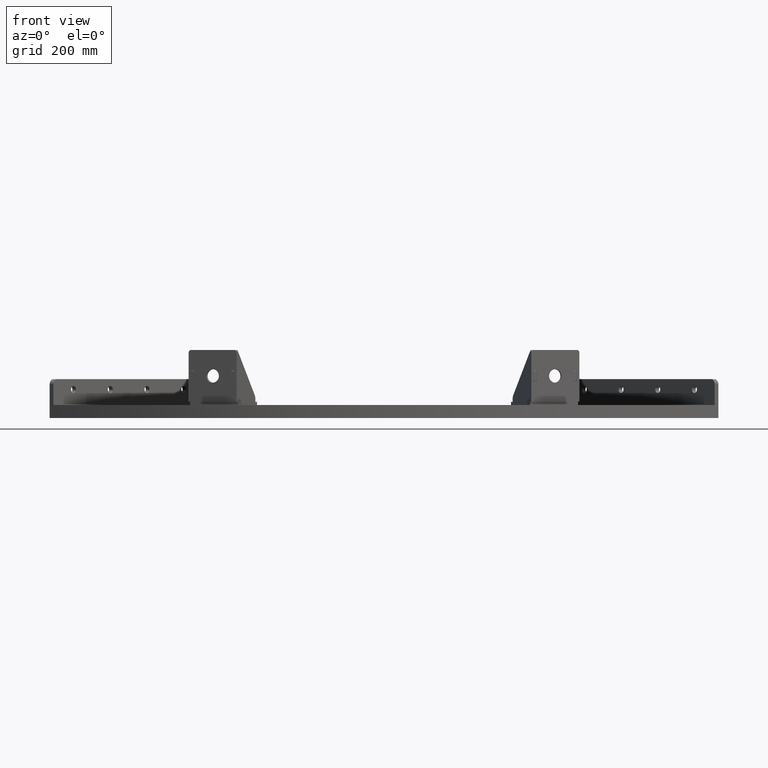
[diagram: clean part render]
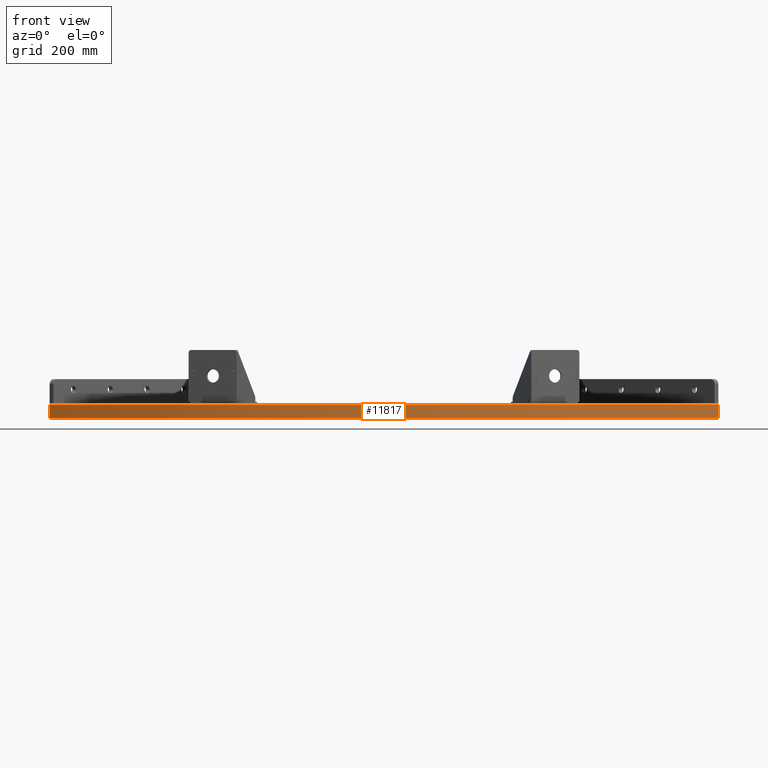
[diagram: same view with one face highlighted and labeled with its STEP entity id]
A machine part, front view. The second image highlights one B-rep face of the part: STEP entity #11817.
In plain terms, the highlighted cylindrical surface (partial cylindrical patch) has radius 910 mm, axis along (-0, -0, -1).
Its self-contained STEP definition (entity closure, byte-faithful):
#558 = CIRCLE ( 'NONE', #7912, 910.0000000000000000 ) ;
#790 = DIRECTION ( 'NONE',  ( 1.000000000000000000, -6.192194466414940491E-16, -3.812579068080895035E-18 ) ) ;
#1123 = ORIENTED_EDGE ( 'NONE', *, *, #10431, .T. ) ;
#1263 = ORIENTED_EDGE ( 'NONE', *, *, #2951, .F. ) ;
#1347 = VERTEX_POINT ( 'NONE', #11058 ) ;
#1471 = CARTESIAN_POINT ( 'NONE',  ( -643.4671708797592373, -643.4671708797567362, -24.99999999999987566 ) ) ;
#1525 = CARTESIAN_POINT ( 'NONE',  ( 0.000000000000000000, 0.000000000000000000, 0.000000000000000000 ) ) ;
#2165 = CARTESIAN_POINT ( 'NONE',  ( 643.4671708797599194, -643.4671708797573046, -24.99999999999988631 ) ) ;
#2423 = CARTESIAN_POINT ( 'NONE',  ( 643.4671708797599194, -643.4671708797573046, 1.144917494144692682E-13 ) ) ;
#2498 = CYLINDRICAL_SURFACE ( 'NONE', #6917, 910.0000000000000000 ) ;
#2951 = EDGE_CURVE ( 'NONE', #10601, #11516, #7067, .T. ) ;
#3209 = EDGE_CURVE ( 'NONE', #8951, #10601, #11053, .T. ) ;
#4597 = CARTESIAN_POINT ( 'NONE',  ( 5.463652379908002509E-17, 4.878909776184770742E-15, -25.00000000000000000 ) ) ;
#4973 = LINE ( 'NONE', #2165, #7714 ) ;
#5288 = FACE_OUTER_BOUND ( 'NONE', #8157, .T. ) ;
#5843 = DIRECTION ( 'NONE',  ( -2.185460951963199771E-18, -1.951563910473907981E-16, 1.000000000000000000 ) ) ;
#6074 = ORIENTED_EDGE ( 'NONE', *, *, #10623, .T. ) ;
#6183 = CARTESIAN_POINT ( 'NONE',  ( -643.4671708797592373, -643.4671708797567362, 1.249000902703301108E-13 ) ) ;
#6343 = DIRECTION ( 'NONE',  ( -2.185460951963199771E-18, -1.951563910473907981E-16, 1.000000000000000000 ) ) ;
#6917 = AXIS2_PLACEMENT_3D ( 'NONE', #11140, #6343, #10944 ) ;
#7067 = CIRCLE ( 'NONE', #10846, 910.0000000000000000 ) ;
#7430 = CARTESIAN_POINT ( 'NONE',  ( -643.4671708797592373, -643.4671708797567362, -24.99999999999987566 ) ) ;
#7436 = DIRECTION ( 'NONE',  ( -2.185460951963199771E-18, -1.951563910473907981E-16, 1.000000000000000000 ) ) ;
#7714 = VECTOR ( 'NONE', #5843, 1000.000000000000000 ) ;
#7912 = AXIS2_PLACEMENT_3D ( 'NONE', #4597, #7436, #790 ) ;
#8043 = VECTOR ( 'NONE', #10120, 1000.000000000000000 ) ;
#8157 = EDGE_LOOP ( 'NONE', ( #1263, #11352, #6074, #1123 ) ) ;
#8172 = DIRECTION ( 'NONE',  ( -2.185460951963199771E-18, -1.951563910473907981E-16, 1.000000000000000000 ) ) ;
#8951 = VERTEX_POINT ( 'NONE', #7430 ) ;
#10120 = DIRECTION ( 'NONE',  ( -2.185460951963199771E-18, -1.951563910473907981E-16, 1.000000000000000000 ) ) ;
#10431 = EDGE_CURVE ( 'NONE', #1347, #11516, #4973, .T. ) ;
#10601 = VERTEX_POINT ( 'NONE', #6183 ) ;
#10623 = EDGE_CURVE ( 'NONE', #8951, #1347, #558, .T. ) ;
#10846 = AXIS2_PLACEMENT_3D ( 'NONE', #1525, #8172, #11099 ) ;
#10944 = DIRECTION ( 'NONE',  ( 1.000000000000000000, -6.192194466414940491E-16, -3.812579068080895035E-18 ) ) ;
#11053 = LINE ( 'NONE', #1471, #8043 ) ;
#11058 = CARTESIAN_POINT ( 'NONE',  ( 643.4671708797599194, -643.4671708797573046, -24.99999999999988631 ) ) ;
#11099 = DIRECTION ( 'NONE',  ( 1.000000000000000000, -6.192194466414940491E-16, -2.185460951963200156E-18 ) ) ;
#11140 = CARTESIAN_POINT ( 'NONE',  ( 5.463652379908002509E-17, 4.878909776184770742E-15, -25.00000000000000000 ) ) ;
#11352 = ORIENTED_EDGE ( 'NONE', *, *, #3209, .F. ) ;
#11516 = VERTEX_POINT ( 'NONE', #2423 ) ;
#11817 = ADVANCED_FACE ( 'NONE', ( #5288 ), #2498, .T. ) ;